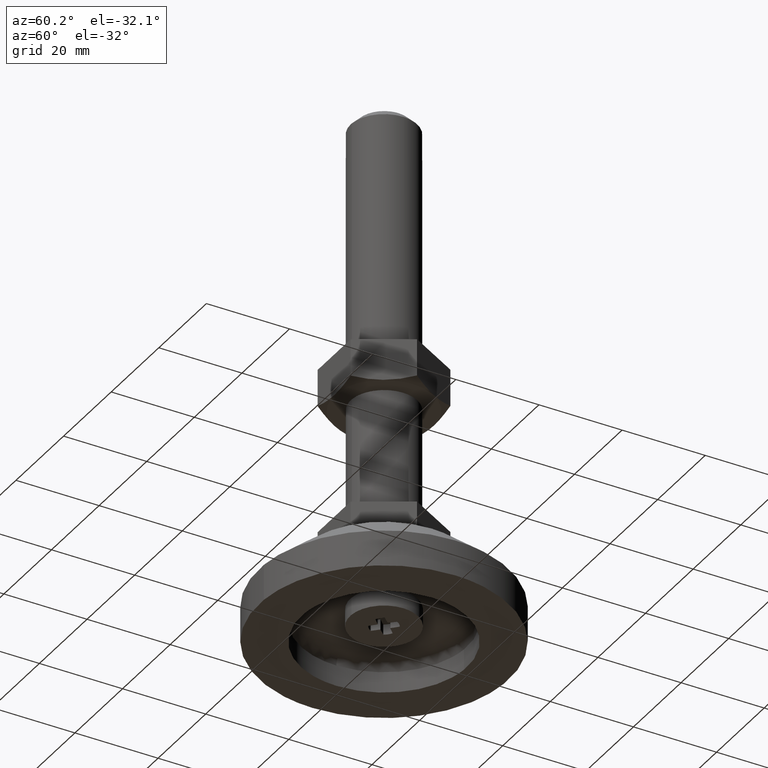
[diagram: clean part render]
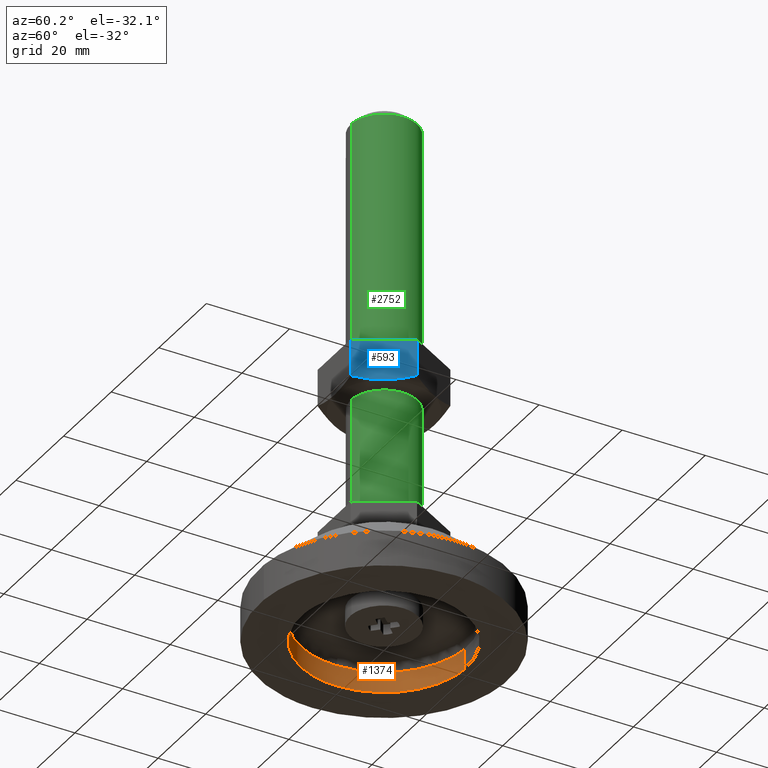
[diagram: same view with three faces highlighted in distinct colors, each labeled with its STEP entity id]
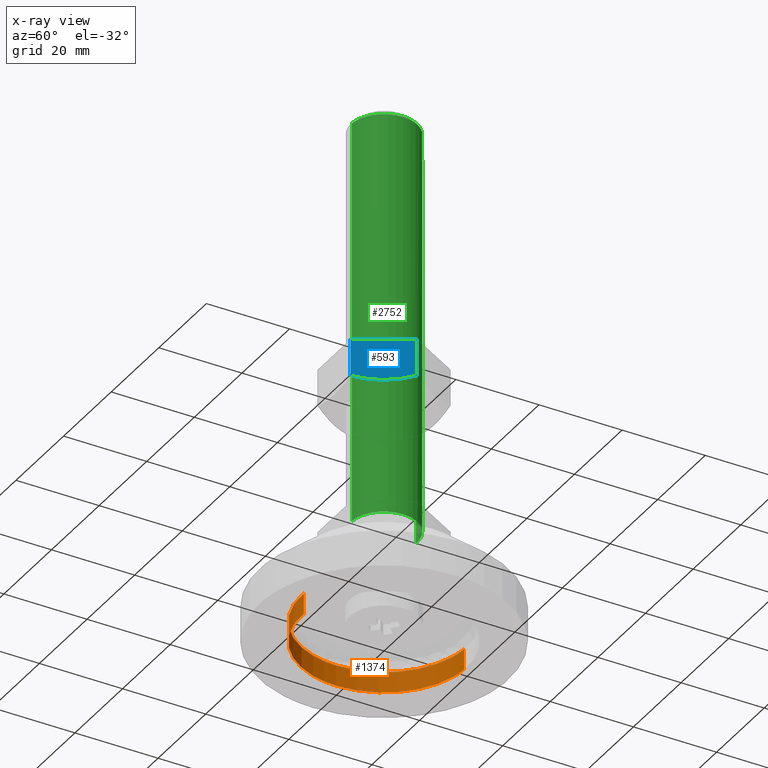
[diagram: x-ray of the same camera — body ghosted, the three highlighted faces saturated]
A machine part, auxiliary view with three faces highlighted in distinct colors.
The next image is the same camera in x-ray (body ghosted, the three faces saturated) — at least one of them is partly hidden behind the body in this view.
Their STEP definitions:

[orange] entity #1374 — the highlighted face is a freeform B-spline surface patch.
#1002=CARTESIAN_POINT('',(-20.0,-1.770216E-015,5.000000000053928));
#1003=VERTEX_POINT('',#1002);
#1017=CARTESIAN_POINT('',(-1.220948073408924,19.962697357860261,5.000000000054692));
#1018=VERTEX_POINT('',#1017);
#1019=CARTESIAN_POINT('',(-20.0,-1.770216E-015,5.000000000053928));
#1020=CARTESIAN_POINT('',(-19.999999999999609,18.814142788351660,5.000000000054309));
#1021=CARTESIAN_POINT('',(-1.220948073408924,19.962697357860261,5.000000000054692));
#1029=(BOUNDED_CURVE()B_SPLINE_CURVE(2,(#1019,#1020,#1021),.UNSPECIFIED.,.F.,.U.)B_SPLINE_CURVE_WITH_KNOTS((3,3),(0.0,0.239333158597998),.UNSPECIFIED.)CURVE()GEOMETRIC_REPRESENTATION_ITEM()RATIONAL_B_SPLINE_CURVE((1.0,0.719603763237767,0.976072462501913))REPRESENTATION_ITEM(''));
#1030=EDGE_CURVE('',#1003,#1018,#1029,.T.);
#1098=CARTESIAN_POINT('',(1.220948073408923,-19.962697357860261,5.000000000054691));
#1099=VERTEX_POINT('',#1098);
#1113=CARTESIAN_POINT('',(1.220948073408923,-19.962697357860261,5.000000000054691));
#1114=CARTESIAN_POINT('',(0.611043875479347,-19.999999999987260,5.000000000054679));
#1115=CARTESIAN_POINT('',(-7.690357E-013,-19.999999999987459,5.000000000054668));
#1116=CARTESIAN_POINT('',(-20.000000000000366,-19.999999999993918,5.000000000054286));
#1117=CARTESIAN_POINT('',(-20.0,-1.770216E-015,5.000000000053928));
#1125=(BOUNDED_CURVE()B_SPLINE_CURVE(2,(#1113,#1114,#1115,#1116,#1117),.UNSPECIFIED.,.F.,.U.)B_SPLINE_CURVE_WITH_KNOTS((3,2,3),(0.739333158597998,0.750000000000000,1.0),.UNSPECIFIED.)CURVE()GEOMETRIC_REPRESENTATION_ITEM()RATIONAL_B_SPLINE_CURVE((0.976072462501913,0.987503017948780,1.0,0.707106781186548,1.0))REPRESENTATION_ITEM(''));
#1126=EDGE_CURVE('',#1099,#1003,#1125,.T.);
#1272=CARTESIAN_POINT('',(-1.220948347412878,19.962697341102078,-1.804112E-016));
#1273=VERTEX_POINT('',#1272);
#1274=CARTESIAN_POINT('',(-1.220948073408924,19.962697357860261,5.000000000054692));
#1275=CARTESIAN_POINT('',(-1.220948347412878,19.962697341102078,-1.804112E-016));
#1276=QUASI_UNIFORM_CURVE('',1,(#1274,#1275),.UNSPECIFIED.,.F.,.U.);
#1277=EDGE_CURVE('',#1018,#1273,#1276,.T.);
#1296=CARTESIAN_POINT('',(1.220948347412882,-19.962697341102078,4.024558E-016));
#1297=VERTEX_POINT('',#1296);
#1311=CARTESIAN_POINT('',(1.220948073408923,-19.962697357860261,5.000000000054691));
#1312=CARTESIAN_POINT('',(1.220948347412882,-19.962697341102078,4.024558E-016));
#1313=QUASI_UNIFORM_CURVE('',1,(#1311,#1312),.UNSPECIFIED.,.F.,.U.);
#1314=EDGE_CURVE('',#1099,#1297,#1313,.T.);
#1320=CARTESIAN_POINT('',(1.220970790697140,-19.962695968437330,5.125000000055278));
#1321=CARTESIAN_POINT('',(-18.741725177740186,-21.183666759134471,5.125000000055277));
#1322=CARTESIAN_POINT('',(-19.962695968437330,-1.220970790697140,5.125000000055278));
#1323=CARTESIAN_POINT('',(-21.183666759134471,18.741725177740186,5.125000000055277));
#1324=CARTESIAN_POINT('',(-1.220970790697140,19.962695968437330,5.125000000055278));
#1325=CARTESIAN_POINT('',(1.220970790697140,-19.962695968437330,-0.128125000001382));
#1326=CARTESIAN_POINT('',(-18.741725177740186,-21.183666759134471,-0.128125000001382));
#1327=CARTESIAN_POINT('',(-19.962695968437330,-1.220970790697140,-0.128125000001382));
#1328=CARTESIAN_POINT('',(-21.183666759134471,18.741725177740186,-0.128125000001382));
#1329=CARTESIAN_POINT('',(-1.220970790697140,19.962695968437330,-0.128125000001382));
#1337=(BOUNDED_SURFACE()B_SPLINE_SURFACE(2,1,((#1320,#1325),(#1321,#1326),(#1322,#1327),(#1323,#1328),(#1324,#1329)),.UNSPECIFIED.,.F.,.F.,.U.)B_SPLINE_SURFACE_WITH_KNOTS((3,2,3),(2,2),(0.0,33.137084989847587,66.274169979695188),(0.0,5.253125000056659),.UNSPECIFIED.)GEOMETRIC_REPRESENTATION_ITEM()RATIONAL_B_SPLINE_SURFACE(((1.0,1.0),(0.707106781186548,0.707106781186548),(1.0,1.0),(0.707106781186548,0.707106781186548),(1.0,1.0)))REPRESENTATION_ITEM('')SURFACE());
#1338=ORIENTED_EDGE('',*,*,#1030,.F.);
#1339=ORIENTED_EDGE('',*,*,#1126,.F.);
#1340=ORIENTED_EDGE('',*,*,#1314,.T.);
#1341=CARTESIAN_POINT('',(-20.0,0.0,0.0));
#1342=VERTEX_POINT('',#1341);
#1343=CARTESIAN_POINT('',(1.220948347412882,-19.962697341102078,4.024558E-016));
#1344=CARTESIAN_POINT('',(0.611044012865462,-19.999999999987569,3.966724E-016));
#1345=CARTESIAN_POINT('',(-7.502379E-013,-19.999999999987761,3.905245E-016));
#1346=CARTESIAN_POINT('',(-20.000000000000366,-19.999999999994074,1.892965E-016));
#1347=CARTESIAN_POINT('',(-20.0,0.0,0.0));
#1355=(BOUNDED_CURVE()B_SPLINE_CURVE(2,(#1343,#1344,#1345,#1346,#1347),.UNSPECIFIED.,.F.,.U.)B_SPLINE_CURVE_WITH_KNOTS((3,2,3),(0.739333156229655,0.750000000000000,1.0),.UNSPECIFIED.)CURVE()GEOMETRIC_REPRESENTATION_ITEM()RATIONAL_B_SPLINE_CURVE((0.976072457426094,0.987503015174094,1.0,0.707106781186548,1.0))REPRESENTATION_ITEM(''));
#1356=EDGE_CURVE('',#1297,#1342,#1355,.T.);
#1357=ORIENTED_EDGE('',*,*,#1356,.T.);
#1358=CARTESIAN_POINT('',(-20.0,0.0,0.0));
#1359=CARTESIAN_POINT('',(-19.999999999999616,18.814142529630164,-9.020562E-017));
#1360=CARTESIAN_POINT('',(-1.220948347412879,19.962697341102086,-1.804112E-016));
#1368=(BOUNDED_CURVE()B_SPLINE_CURVE(2,(#1358,#1359,#1360),.UNSPECIFIED.,.F.,.U.)B_SPLINE_CURVE_WITH_KNOTS((3,3),(0.0,0.239333156229655),.UNSPECIFIED.)CURVE()GEOMETRIC_REPRESENTATION_ITEM()RATIONAL_B_SPLINE_CURVE((1.0,0.719603766012454,0.976072457426094))REPRESENTATION_ITEM(''));
#1369=EDGE_CURVE('',#1342,#1273,#1368,.T.);
#1370=ORIENTED_EDGE('',*,*,#1369,.T.);
#1371=ORIENTED_EDGE('',*,*,#1277,.F.);
#1372=EDGE_LOOP('',(#1338,#1339,#1340,#1357,#1370,#1371));
#1373=FACE_OUTER_BOUND('',#1372,.T.);
#1374=ADVANCED_FACE('',(#1373),#1337,.F.);

[blue] entity #593 — the highlighted face is a freeform B-spline surface patch.
#175=CARTESIAN_POINT('',(10.332761280345210,-6.092036745720942,57.000784531429773));
#176=VERTEX_POINT('',#175);
#182=CARTESIAN_POINT('',(6.921797000000001,-12.0,58.073646796981102));
#183=VERTEX_POINT('',#182);
#184=CARTESIAN_POINT('',(6.921797000000001,-12.0,58.073646796981102));
#185=CARTESIAN_POINT('',(7.487395772383708,-11.020354220992679,57.746871651787913));
#186=CARTESIAN_POINT('',(8.057123296092655,-10.033557234638970,57.477486419747613));
#187=CARTESIAN_POINT('',(8.920641063569274,-8.537900634298122,57.197487253449282));
#188=CARTESIAN_POINT('',(9.209971671413889,-8.036765336614618,57.124884088511983));
#189=CARTESIAN_POINT('',(9.776695725460060,-7.055170510684769,57.029190962181133));
#190=CARTESIAN_POINT('',(10.053918824481549,-6.575006032420732,57.003733163855941));
#191=CARTESIAN_POINT('',(10.332761280345210,-6.092036745720942,57.000784531429773));
#192=B_SPLINE_CURVE_WITH_KNOTS('',3,(#184,#185,#186,#187,#188,#189,#190,#191),.UNSPECIFIED.,.F.,.U.,(4,2,2,4),(0.0,0.250000000000000,0.375000000000001,0.493422575026319),.UNSPECIFIED.);
#193=EDGE_CURVE('',#183,#176,#192,.T.);
#322=CARTESIAN_POINT('',(13.850000000000000,2.522466E-015,58.071796703249603));
#323=VERTEX_POINT('',#322);
#343=CARTESIAN_POINT('',(10.332761280345210,-6.092036745720942,57.000784531429773));
#344=CARTESIAN_POINT('',(10.348248742629350,-6.065211671645572,57.000620761392462));
#345=CARTESIAN_POINT('',(10.363741200486681,-6.038377944982233,57.000526430156100));
#346=CARTESIAN_POINT('',(10.526498720988810,-5.756473623675332,57.000267547938897));
#347=CARTESIAN_POINT('',(10.674505143075161,-5.500118956641718,57.006343869094330));
#348=CARTESIAN_POINT('',(10.969168994463260,-4.989746146736517,57.030921325750263));
#349=CARTESIAN_POINT('',(11.115989092811031,-4.735446252786162,57.049394064813931));
#350=CARTESIAN_POINT('',(11.554980302967101,-3.975091100697398,57.122562089201253));
#351=CARTESIAN_POINT('',(11.845678887180600,-3.471586335265923,57.195048777272298));
#352=CARTESIAN_POINT('',(12.712599404911479,-1.970035809117661,57.475037169589292));
#353=CARTESIAN_POINT('',(13.283666257645770,-0.980918910574583,57.744823695343079));
#354=CARTESIAN_POINT('',(13.850000000000000,2.522466E-015,58.071796703249603));
#355=B_SPLINE_CURVE_WITH_KNOTS('',3,(#343,#344,#345,#346,#347,#348,#349,#350,#351,#352,#353,#354),.UNSPECIFIED.,.F.,.U.,(4,2,2,2,2,4),(0.493422575026319,0.500000000000001,0.562500000000001,0.625000000000001,0.750000000000001,1.0),.UNSPECIFIED.);
#356=EDGE_CURVE('',#176,#323,#355,.T.);
#506=CARTESIAN_POINT('',(6.921797000000001,-12.0,67.0));
#507=VERTEX_POINT('',#506);
#513=CARTESIAN_POINT('',(13.850000000000000,0.0,67.0));
#514=VERTEX_POINT('',#513);
#515=CARTESIAN_POINT('',(13.850000000000000,0.0,67.0));
#516=CARTESIAN_POINT('',(6.921797000000001,-12.0,67.0));
#517=QUASI_UNIFORM_CURVE('',1,(#515,#516),.UNSPECIFIED.,.F.,.U.);
#518=EDGE_CURVE('',#514,#507,#517,.T.);
#568=CARTESIAN_POINT('',(6.921797000000001,-12.0,67.0));
#569=CARTESIAN_POINT('',(6.921797000000001,-12.0,58.073646796981102));
#570=QUASI_UNIFORM_CURVE('',1,(#568,#569),.UNSPECIFIED.,.F.,.U.);
#571=EDGE_CURVE('',#507,#183,#570,.T.);
#577=CARTESIAN_POINT('',(6.575733273578191,-12.599399976741671,56.501323718713117));
#578=CARTESIAN_POINT('',(14.196063912250681,0.599400298606756,56.501323718713117));
#579=CARTESIAN_POINT('',(6.575733273578191,-12.599399976741671,67.499461062406652));
#580=CARTESIAN_POINT('',(14.196063912250681,0.599400298606756,67.499461062406652));
#581=B_SPLINE_SURFACE_WITH_KNOTS('',1,1,((#577,#579),(#578,#580)),.UNSPECIFIED.,.F.,.F.,.U.,(2,2),(2,2),(0.0,15.240661657265029),(0.0,10.998137343693539),.UNSPECIFIED.);
#582=ORIENTED_EDGE('',*,*,#571,.T.);
#583=ORIENTED_EDGE('',*,*,#193,.T.);
#584=ORIENTED_EDGE('',*,*,#356,.T.);
#585=CARTESIAN_POINT('',(13.850000000000000,0.0,67.0));
#586=CARTESIAN_POINT('',(13.850000000000000,2.522466E-015,58.071796703249603));
#587=QUASI_UNIFORM_CURVE('',1,(#585,#586),.UNSPECIFIED.,.F.,.U.);
#588=EDGE_CURVE('',#514,#323,#587,.T.);
#589=ORIENTED_EDGE('',*,*,#588,.F.);
#590=ORIENTED_EDGE('',*,*,#518,.T.);
#591=EDGE_LOOP('',(#582,#583,#584,#589,#590));
#592=FACE_OUTER_BOUND('',#591,.T.);
#593=ADVANCED_FACE('',(#592),#581,.T.);

[green] entity #2752 — the highlighted face is a freeform B-spline surface patch.
#2535=CARTESIAN_POINT('',(0.069812285149507,7.999695384661502,124.999999999841710));
#2536=VERTEX_POINT('',#2535);
#2542=CARTESIAN_POINT('',(-0.488388316454028,7.985078387364220,125.0));
#2543=VERTEX_POINT('',#2542);
#2544=CARTESIAN_POINT('',(-0.488388316454028,7.985078387364220,125.0));
#2545=CARTESIAN_POINT('',(-0.302568066664843,7.996444700159066,124.999999999947510));
#2546=CARTESIAN_POINT('',(-0.116348516152781,8.001320403816497,124.999999999894500));
#2547=CARTESIAN_POINT('',(0.069812285149507,7.999695384661502,124.999999999841710));
#2548=B_SPLINE_CURVE_WITH_KNOTS('',3,(#2544,#2545,#2546,#2547),.UNSPECIFIED.,.F.,.U.,(4,4),(1.146392E-010,0.558507134109934),.UNSPECIFIED.);
#2549=EDGE_CURVE('',#2543,#2536,#2548,.T.);
#2585=CARTESIAN_POINT('',(0.488388316454030,-7.985078387364220,125.0));
#2586=VERTEX_POINT('',#2585);
#2594=CARTESIAN_POINT('',(8.0,0.0,125.0));
#2595=VERTEX_POINT('',#2594);
#2596=CARTESIAN_POINT('',(8.0,0.0,125.0));
#2597=CARTESIAN_POINT('',(8.0,-7.525648535080154,125.0));
#2598=CARTESIAN_POINT('',(0.488388316454031,-7.985078387364222,124.999999999999940));
#2606=(BOUNDED_CURVE()B_SPLINE_CURVE(2,(#2596,#2597,#2598),.UNSPECIFIED.,.F.,.U.)B_SPLINE_CURVE_WITH_KNOTS((3,3),(0.0,0.239332962238183),.UNSPECIFIED.)CURVE()GEOMETRIC_REPRESENTATION_ITEM()RATIONAL_B_SPLINE_CURVE((1.0,0.719603993287601,0.976072041665089))REPRESENTATION_ITEM(''));
#2607=EDGE_CURVE('',#2595,#2586,#2606,.T.);
#2609=CARTESIAN_POINT('',(0.069812285149507,7.999695384661502,124.999999999841760));
#2610=CARTESIAN_POINT('',(8.000000000000691,7.930489683687823,124.999999999920860));
#2611=CARTESIAN_POINT('',(8.0,0.0,125.0));
#2619=(BOUNDED_CURVE()B_SPLINE_CURVE(2,(#2609,#2610,#2611),.UNSPECIFIED.,.F.,.U.)B_SPLINE_CURVE_WITH_KNOTS((3,3),(0.751539894360554,1.0),.UNSPECIFIED.)CURVE()GEOMETRIC_REPRESENTATION_ITEM()RATIONAL_B_SPLINE_CURVE((0.996414028041237,0.708910879650129,1.0))REPRESENTATION_ITEM(''));
#2620=EDGE_CURVE('',#2536,#2595,#2619,.T.);
#2647=CARTESIAN_POINT('',(0.488388316454030,-7.985078387364220,27.000000000000011));
#2648=VERTEX_POINT('',#2647);
#2666=CARTESIAN_POINT('',(0.488388316454030,-7.985078387364220,125.0));
#2667=CARTESIAN_POINT('',(0.488388316454030,-7.985078387364220,27.000000000000011));
#2668=QUASI_UNIFORM_CURVE('',1,(#2666,#2667),.UNSPECIFIED.,.F.,.U.);
#2669=EDGE_CURVE('',#2586,#2648,#2668,.T.);
#2674=CARTESIAN_POINT('',(-0.488388316454031,7.985078387364220,27.000000000000011));
#2675=VERTEX_POINT('',#2674);
#2676=CARTESIAN_POINT('',(-0.488388316454028,7.985078387364220,125.0));
#2677=CARTESIAN_POINT('',(-0.488388316454031,7.985078387364220,27.000000000000011));
#2678=QUASI_UNIFORM_CURVE('',1,(#2676,#2677),.UNSPECIFIED.,.F.,.U.);
#2679=EDGE_CURVE('',#2543,#2675,#2678,.T.);
#2697=CARTESIAN_POINT('',(-0.488388316278856,7.985078387374934,127.450000000000000));
#2698=CARTESIAN_POINT('',(7.496690071096078,8.473466703653790,127.450000000000020));
#2699=CARTESIAN_POINT('',(7.985078387374934,0.488388316278856,127.450000000000000));
#2700=CARTESIAN_POINT('',(8.473466703653790,-7.496690071096078,127.450000000000020));
#2701=CARTESIAN_POINT('',(0.488388316278856,-7.985078387374934,127.450000000000000));
#2702=CARTESIAN_POINT('',(-0.488388316278856,7.985078387374934,24.488750000000000));
#2703=CARTESIAN_POINT('',(7.496690071096078,8.473466703653790,24.488750000000003));
#2704=CARTESIAN_POINT('',(7.985078387374934,0.488388316278856,24.488750000000000));
#2705=CARTESIAN_POINT('',(8.473466703653790,-7.496690071096078,24.488750000000003));
#2706=CARTESIAN_POINT('',(0.488388316278856,-7.985078387374934,24.488750000000000));
#2714=(BOUNDED_SURFACE()B_SPLINE_SURFACE(2,1,((#2697,#2702),(#2698,#2703),(#2699,#2704),(#2700,#2705),(#2701,#2706)),.UNSPECIFIED.,.F.,.F.,.U.)B_SPLINE_SURFACE_WITH_KNOTS((3,2,3),(2,2),(0.0,13.254833995939039,26.509667991878072),(0.0,102.961250000000010),.UNSPECIFIED.)GEOMETRIC_REPRESENTATION_ITEM()RATIONAL_B_SPLINE_SURFACE(((1.0,1.0),(0.707106781186548,0.707106781186548),(1.0,1.0),(0.707106781186548,0.707106781186548),(1.0,1.0)))REPRESENTATION_ITEM('')SURFACE());
#2715=CARTESIAN_POINT('',(8.0,0.0,27.0));
#2716=VERTEX_POINT('',#2715);
#2717=CARTESIAN_POINT('',(8.0,0.0,27.0));
#2718=CARTESIAN_POINT('',(8.0,-7.525648535080157,27.0));
#2719=CARTESIAN_POINT('',(0.488388316454029,-7.985078387364222,27.0));
#2727=(BOUNDED_CURVE()B_SPLINE_CURVE(2,(#2717,#2718,#2719),.UNSPECIFIED.,.F.,.U.)B_SPLINE_CURVE_WITH_KNOTS((3,3),(0.0,0.239332962238183),.UNSPECIFIED.)CURVE()GEOMETRIC_REPRESENTATION_ITEM()RATIONAL_B_SPLINE_CURVE((1.0,0.719603993287600,0.976072041665089))REPRESENTATION_ITEM(''));
#2728=EDGE_CURVE('',#2716,#2648,#2727,.T.);
#2729=ORIENTED_EDGE('',*,*,#2728,.F.);
#2730=CARTESIAN_POINT('',(-0.488388316454030,7.985078387364221,27.000000000000004));
#2731=CARTESIAN_POINT('',(-0.244422106476544,8.0,27.0));
#2732=CARTESIAN_POINT('',(0.0,8.0,27.0));
#2733=CARTESIAN_POINT('',(8.0,8.0,27.000000000000011));
#2734=CARTESIAN_POINT('',(8.0,0.0,27.0));
#2742=(BOUNDED_CURVE()B_SPLINE_CURVE(2,(#2730,#2731,#2732,#2733,#2734),.UNSPECIFIED.,.F.,.U.)B_SPLINE_CURVE_WITH_KNOTS((3,2,3),(0.739332962238183,0.750000000000000,1.0),.UNSPECIFIED.)CURVE()GEOMETRIC_REPRESENTATION_ITEM()RATIONAL_B_SPLINE_CURVE((0.976072041665089,0.987502787898947,1.0,0.707106781186548,1.0))REPRESENTATION_ITEM(''));
#2743=EDGE_CURVE('',#2675,#2716,#2742,.T.);
#2744=ORIENTED_EDGE('',*,*,#2743,.F.);
#2745=ORIENTED_EDGE('',*,*,#2679,.F.);
#2746=ORIENTED_EDGE('',*,*,#2549,.T.);
#2747=ORIENTED_EDGE('',*,*,#2620,.T.);
#2748=ORIENTED_EDGE('',*,*,#2607,.T.);
#2749=ORIENTED_EDGE('',*,*,#2669,.T.);
#2750=EDGE_LOOP('',(#2729,#2744,#2745,#2746,#2747,#2748,#2749));
#2751=FACE_OUTER_BOUND('',#2750,.T.);
#2752=ADVANCED_FACE('',(#2751),#2714,.T.);